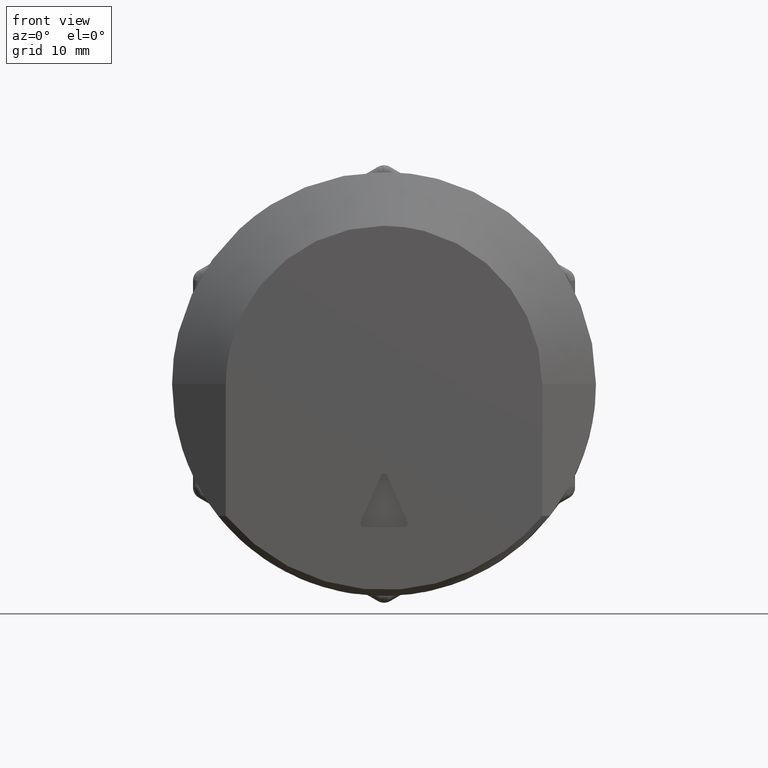
[diagram: clean part render]
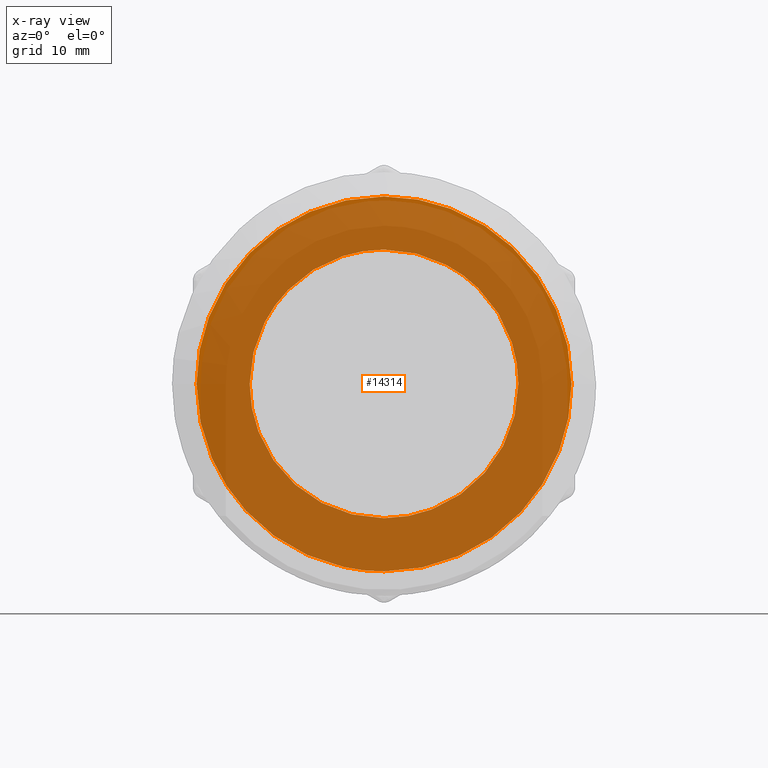
[diagram: x-ray — body ghosted, one internal face saturated and labeled with its STEP entity id]
A machine part, front view, then the same camera in x-ray: the body is ghosted and one INTERNAL B-rep face — a face not visible from any outside direction — is saturated and labeled: STEP entity #14314.
In plain terms, the highlighted face is a freeform B-spline surface patch.
Its self-contained STEP definition (entity closure, byte-faithful):
#10795=CARTESIAN_POINT('',(-0.700000168135558,8.024067912752862,7.885229576916546));
#10796=VERTEX_POINT('',#10795);
#10802=CARTESIAN_POINT('',(-0.700000000000000,11.249999999999920,0.000001345289322));
#10803=VERTEX_POINT('',#10802);
#10804=CARTESIAN_POINT('',(-0.700000000000000,11.249999999999920,0.000001345289322));
#10805=CARTESIAN_POINT('',(-0.700000019892967,11.250223918274729,0.932942530156515));
#10806=CARTESIAN_POINT('',(-0.700000052882342,11.056387429566140,2.480079896160794));
#10807=CARTESIAN_POINT('',(-0.700000098465802,10.322467038149201,4.617854406793517));
#10808=CARTESIAN_POINT('',(-0.700000135536841,9.357582318133222,6.356413888216860));
#10809=CARTESIAN_POINT('',(-0.700000158100705,8.486614304273321,7.414614618078452));
#10810=CARTESIAN_POINT('',(-0.700000168135558,8.024067912752862,7.885229576916546));
#10811=B_SPLINE_CURVE_WITH_KNOTS('',3,(#10804,#10805,#10806,#10807,#10808,#10809,#10810),.UNSPECIFIED.,.F.,.U.,(4,1,1,1,4),(0.000000014502499,2.798754403480887,4.641827990673709,6.757962193942015,8.737566822168997),.UNSPECIFIED.);
#10812=EDGE_CURVE('',#10803,#10796,#10811,.T.);
#10814=CARTESIAN_POINT('',(-0.700000000000000,0.0,-11.250000000000000));
#10815=VERTEX_POINT('',#10814);
#10816=CARTESIAN_POINT('',(-0.700000000000000,0.0,-11.250000000000000));
#10817=CARTESIAN_POINT('',(-0.700000000000002,0.805350332452206,-11.250148687925980));
#10818=CARTESIAN_POINT('',(-0.699999999999998,2.001786388396512,-11.120939669879970));
#10819=CARTESIAN_POINT('',(-0.700000000000002,3.646450623551425,-10.671202827015760));
#10820=CARTESIAN_POINT('',(-0.700000000000001,4.970808401185765,-10.132144233765031));
#10821=CARTESIAN_POINT('',(-0.699999999999997,6.448237948988195,-9.277182199961631));
#10822=CARTESIAN_POINT('',(-0.700000000000006,7.862500775978261,-8.123772869737781));
#10823=CARTESIAN_POINT('',(-0.700000000000006,9.179221442141618,-6.606794381707761));
#10824=CARTESIAN_POINT('',(-0.699999999999965,10.101339347068031,-5.057574055387842));
#10825=CARTESIAN_POINT('',(-0.700000000000021,10.683344014914820,-3.601989820076792));
#10826=CARTESIAN_POINT('',(-0.699999999999977,11.120938979317410,-2.001783894578319));
#10827=CARTESIAN_POINT('',(-0.700000000000025,11.250152058847590,-0.805348361012741));
#10828=CARTESIAN_POINT('',(-0.700000000000000,11.249999999999920,0.000001345289322));
#10829=B_SPLINE_CURVE_WITH_KNOTS('',3,(#10816,#10817,#10818,#10819,#10820,#10821,#10822,#10823,#10824,#10825,#10826,#10827,#10828),.UNSPECIFIED.,.F.,.U.,(4,1,1,1,1,1,1,1,1,1,4),(0.000000058043877,2.416008437686742,3.589516832231487,5.108170323667233,6.695856568172596,8.697695005740384,10.561457179632580,12.701376914078249,14.081972406103249,15.255481118235060,17.671487156062948),.UNSPECIFIED.);
#10830=EDGE_CURVE('',#10815,#10803,#10829,.T.);
#10832=CARTESIAN_POINT('',(-0.700000000000000,-11.249999999999920,-0.000001345289481));
#10833=VERTEX_POINT('',#10832);
#10834=CARTESIAN_POINT('',(-0.700000000000000,-11.249999999999920,-0.000001345289481));
#10835=CARTESIAN_POINT('',(-0.699999999999999,-11.250370293043231,-1.012466191176613));
#10836=CARTESIAN_POINT('',(-0.700000000000001,-11.012233002559871,-2.761004116394061));
#10837=CARTESIAN_POINT('',(-0.700000000000000,-10.072030078909179,-5.198644001116131));
#10838=CARTESIAN_POINT('',(-0.700000000000001,-8.815866282330758,-7.116561466688702));
#10839=CARTESIAN_POINT('',(-0.699999999999995,-7.426932694571976,-8.505316995735777));
#10840=CARTESIAN_POINT('',(-0.699999999999998,-6.149730568634316,-9.452501359083811));
#10841=CARTESIAN_POINT('',(-0.700000000000020,-4.928088727671801,-10.149536360376890));
#10842=CARTESIAN_POINT('',(-0.699999999999993,-3.646448182168770,-10.671201566915800));
#10843=CARTESIAN_POINT('',(-0.700000000000003,-2.001785846049404,-11.120951713831440));
#10844=CARTESIAN_POINT('',(-0.699999999999999,-0.805348374516554,-11.250135682149930));
#10845=CARTESIAN_POINT('',(-0.700000000000000,0.0,-11.250000000000000));
#10846=B_SPLINE_CURVE_WITH_KNOTS('',3,(#10834,#10835,#10836,#10837,#10838,#10839,#10840,#10841,#10842,#10843,#10844,#10845),.UNSPECIFIED.,.F.,.U.,(4,1,1,1,1,1,1,1,1,4),(0.000000058158381,3.037285637179972,5.246229299486322,7.800305966934422,9.871180048806842,11.113689337792231,12.563316469766351,14.081971197455740,15.255479808973400,17.671485639605919),.UNSPECIFIED.);
#10847=EDGE_CURVE('',#10833,#10815,#10846,.T.);
#10849=CARTESIAN_POINT('',(-0.699999831864431,-7.885228869829906,8.024067193216261));
#10850=VERTEX_POINT('',#10849);
#10851=CARTESIAN_POINT('',(-0.699999831864431,-7.885228869829906,8.024067193216261));
#10852=CARTESIAN_POINT('',(-0.699999843480319,-8.449523282520858,7.469712919899064));
#10853=CARTESIAN_POINT('',(-0.699999868463563,-9.430601763725365,6.277417320073107));
#10854=CARTESIAN_POINT('',(-0.699999910960998,-10.496743609413160,4.249278254022461));
#10855=CARTESIAN_POINT('',(-0.699999955150291,-11.115340605591840,2.140397284380665));
#10856=CARTESIAN_POINT('',(-0.699999985374907,-11.250073832200041,0.697963541093560));
#10857=CARTESIAN_POINT('',(-0.700000000000000,-11.249999999999920,-0.000001345289481));
#10858=B_SPLINE_CURVE_WITH_KNOTS('',3,(#10851,#10852,#10853,#10854,#10855,#10856,#10857),.UNSPECIFIED.,.F.,.U.,(4,1,1,1,4),(0.000000015234434,2.373072745139285,4.606547821486907,6.840032528284461,8.933919581524874),.UNSPECIFIED.);
#10859=EDGE_CURVE('',#10850,#10833,#10858,.T.);
#10970=CARTESIAN_POINT('',(-0.700000000000000,0.0,11.250000000000000));
#10971=VERTEX_POINT('',#10970);
#10972=CARTESIAN_POINT('',(-0.700000000000000,0.0,11.250000000000000));
#10973=CARTESIAN_POINT('',(-0.699999985929655,-0.659871724774858,11.250060346182110));
#10974=CARTESIAN_POINT('',(-0.699999961671064,-1.797551848049475,11.149596812273980));
#10975=CARTESIAN_POINT('',(-0.699999926723033,-3.436546479215304,10.749082266384621));
#10976=CARTESIAN_POINT('',(-0.699999897766435,-4.794553595908223,10.212638853975321));
#10977=CARTESIAN_POINT('',(-0.699999864621301,-6.348996615961720,9.349978501180987));
#10978=CARTESIAN_POINT('',(-0.699999843974534,-7.317288323422429,8.582373868535917));
#10979=CARTESIAN_POINT('',(-0.699999831864431,-7.885228869829906,8.024067193216261));
#10980=B_SPLINE_CURVE_WITH_KNOTS('',3,(#10972,#10973,#10974,#10975,#10976,#10977,#10978,#10979),.UNSPECIFIED.,.F.,.U.,(4,1,1,1,1,4),(0.000000014496855,1.979604858760677,3.413120047196962,5.051398990001042,6.348388739364918,8.737567775705646),.UNSPECIFIED.);
#10981=EDGE_CURVE('',#10971,#10850,#10980,.T.);
#10983=CARTESIAN_POINT('',(-0.700000168135558,8.024067912752862,7.885229576916546));
#10984=CARTESIAN_POINT('',(-0.700000155495312,7.420827270974567,8.499342625463372));
#10985=CARTESIAN_POINT('',(-0.700000128004467,6.108859882932483,9.558531947051991));
#10986=CARTESIAN_POINT('',(-0.700000086619350,4.133804538747438,10.527280979372531));
#10987=CARTESIAN_POINT('',(-0.700000043873986,2.093833414308187,11.111971192313320));
#10988=CARTESIAN_POINT('',(-0.700000016575277,0.791035129518344,11.250135924459510));
#10989=CARTESIAN_POINT('',(-0.700000000000000,0.0,11.250000000000000));
#10990=B_SPLINE_CURVE_WITH_KNOTS('',3,(#10983,#10984,#10985,#10986,#10987,#10988,#10989),.UNSPECIFIED.,.F.,.U.,(4,1,1,1,4),(0.000000015233171,2.582463509709259,5.025318163173779,6.560846157831058,8.933918636791450),.UNSPECIFIED.);
#10991=EDGE_CURVE('',#10796,#10971,#10990,.T.);
#12792=CARTESIAN_POINT('',(-0.700000000000000,0.0,15.699999999999999));
#12793=VERTEX_POINT('',#12792);
#12794=CARTESIAN_POINT('',(-0.700000141779964,11.251419959105370,10.949681983883030));
#12795=VERTEX_POINT('',#12794);
#12796=CARTESIAN_POINT('',(-0.700000000000000,0.0,15.699999999999999));
#12797=CARTESIAN_POINT('',(-0.700000014819332,1.176037148669529,15.700223839727080));
#12798=CARTESIAN_POINT('',(-0.700000035811579,2.841947103033864,15.511924831730450));
#12799=CARTESIAN_POINT('',(-0.700000064394869,5.110268487002743,14.880305804894141));
#12800=CARTESIAN_POINT('',(-0.700000088492662,7.022628291404618,14.107939536493070));
#12801=CARTESIAN_POINT('',(-0.700000115877779,9.195869736967632,12.823763259589560));
#12802=CARTESIAN_POINT('',(-0.700000133455133,10.590773103102389,11.628661327975980));
#12803=CARTESIAN_POINT('',(-0.700000141779964,11.251419959105370,10.949681983883030));
#12804=B_SPLINE_CURVE_WITH_KNOTS('',3,(#12796,#12797,#12798,#12799,#12800,#12801,#12802,#12803),.UNSPECIFIED.,.F.,.U.,(4,1,1,1,1,4),(0.000000015018081,3.528041552049496,4.998061214771616,7.056076885346476,9.702108174320223,12.544138902547740),.UNSPECIFIED.);
#12805=EDGE_CURVE('',#12793,#12795,#12804,.T.);
#12807=CARTESIAN_POINT('',(-0.700000000000000,-15.699999999999960,0.000001134658629));
#12808=VERTEX_POINT('',#12807);
#12809=CARTESIAN_POINT('',(-0.700000000000000,-15.699999999999960,0.000001134658629));
#12810=CARTESIAN_POINT('',(-0.700000000000002,-15.700163641622639,1.091800276810471));
#12811=CARTESIAN_POINT('',(-0.699999999999996,-15.478040862473330,3.211073595217394));
#12812=CARTESIAN_POINT('',(-0.700000000000008,-14.532892620209671,6.194823472476147));
#12813=CARTESIAN_POINT('',(-0.699999999999988,-13.233574887810329,8.572544886494528));
#12814=CARTESIAN_POINT('',(-0.700000000000013,-11.715166122728110,10.530483421007419));
#12815=CARTESIAN_POINT('',(-0.700000000000003,-10.258632727927390,11.942987973192880));
#12816=CARTESIAN_POINT('',(-0.699999999999979,-8.660990030172338,13.135460540220370));
#12817=CARTESIAN_POINT('',(-0.700000000000042,-6.854295834577981,14.188527204580600));
#12818=CARTESIAN_POINT('',(-0.699999999999988,-4.939047269237870,14.954414371486020));
#12819=CARTESIAN_POINT('',(-0.699999999999997,-2.568851252566607,15.548127982330451));
#12820=CARTESIAN_POINT('',(-0.700000000000004,-1.027567450364385,15.700119640450280));
#12821=CARTESIAN_POINT('',(-0.700000000000000,0.0,15.699999999999999));
#12822=B_SPLINE_CURVE_WITH_KNOTS('',3,(#12809,#12810,#12811,#12812,#12813,#12814,#12815,#12816,#12817,#12818,#12819,#12820,#12821),.UNSPECIFIED.,.F.,.U.,(4,1,1,1,1,1,1,1,1,1,4),(0.000000051548675,3.275360665498130,6.358054983371272,9.344431126321004,11.367456481318390,13.775754791570600,15.413458993376850,17.340142049673940,20.037511439033889,21.578866138650941,24.661540377906910),.UNSPECIFIED.);
#12823=EDGE_CURVE('',#12808,#12793,#12822,.T.);
#12825=CARTESIAN_POINT('',(-0.700000000000000,0.0,-15.699999999999999));
#12826=VERTEX_POINT('',#12825);
#12827=CARTESIAN_POINT('',(-0.700000000000000,0.0,-15.699999999999999));
#12828=CARTESIAN_POINT('',(-0.700000000000001,-1.220252880982642,-15.700262836275879));
#12829=CARTESIAN_POINT('',(-0.699999999999999,-3.467903147456941,-15.436583250221069));
#12830=CARTESIAN_POINT('',(-0.700000000000001,-6.549610556556232,-14.376493953153100));
#12831=CARTESIAN_POINT('',(-0.699999999999999,-8.866811056129921,-13.035366495275790));
#12832=CARTESIAN_POINT('',(-0.700000000000002,-10.716330275130190,-11.536316082164920));
#12833=CARTESIAN_POINT('',(-0.699999999999997,-11.999603632167650,-10.180140136288060));
#12834=CARTESIAN_POINT('',(-0.700000000000006,-13.191745162228390,-8.582995402176000));
#12835=CARTESIAN_POINT('',(-0.699999999999983,-14.154292763181941,-6.907953071949891));
#12836=CARTESIAN_POINT('',(-0.700000000000009,-14.900731558244351,-5.057804021883642));
#12837=CARTESIAN_POINT('',(-0.699999999999983,-15.519887366685341,-2.793606973612736));
#12838=CARTESIAN_POINT('',(-0.700000000000018,-15.700212589255040,-1.123912677162248));
#12839=CARTESIAN_POINT('',(-0.700000000000000,-15.699999999999960,0.000001134658629));
#12840=B_SPLINE_CURVE_WITH_KNOTS('',3,(#12827,#12828,#12829,#12830,#12831,#12832,#12833,#12834,#12835,#12836,#12837,#12838,#12839),.UNSPECIFIED.,.F.,.U.,(4,1,1,1,1,1,1,1,1,1,4),(0.000000051429474,3.660682264536519,6.743391650246561,9.729757017880290,11.656464703347490,13.872113036938551,15.317112611775769,17.629149417038239,19.652168583671980,21.289860894062340,24.661541656933689),.UNSPECIFIED.);
#12841=EDGE_CURVE('',#12826,#12808,#12840,.T.);
#12843=CARTESIAN_POINT('',(-0.699999858796948,11.575254500780030,-10.606766545423969));
#12844=VERTEX_POINT('',#12843);
#12845=CARTESIAN_POINT('',(-0.699999858796948,11.575254500780030,-10.606766545423969));
#12846=CARTESIAN_POINT('',(-0.699999868571861,10.773946821102760,-11.481618616392939));
#12847=CARTESIAN_POINT('',(-0.699999883648270,9.538043452551859,-12.555704541069289));
#12848=CARTESIAN_POINT('',(-0.699999907137758,7.612471092129302,-13.763479633414230));
#12849=CARTESIAN_POINT('',(-0.699999930933371,5.661801648464724,-14.721962628185709));
#12850=CARTESIAN_POINT('',(-0.699999962787060,3.050567759762782,-15.505260832126080));
#12851=CARTESIAN_POINT('',(-0.699999988009084,0.982965294835803,-15.700086433896329));
#12852=CARTESIAN_POINT('',(-0.700000000000000,0.0,-15.699999999999999));
#12853=B_SPLINE_CURVE_WITH_KNOTS('',3,(#12845,#12846,#12847,#12848,#12849,#12850,#12851,#12852),.UNSPECIFIED.,.F.,.U.,(4,1,1,1,1,4),(0.000000015803645,3.559012472086298,4.880940880957303,6.812964734954188,10.066920294807909,13.015815822671120),.UNSPECIFIED.);
#12854=EDGE_CURVE('',#12844,#12826,#12853,.T.);
#12963=CARTESIAN_POINT('',(-0.700000000000000,15.699999999999960,-0.000001134658817));
#12964=VERTEX_POINT('',#12963);
#12965=CARTESIAN_POINT('',(-0.700000141779964,11.251419959105370,10.949681983883030));
#12966=CARTESIAN_POINT('',(-0.700000132118181,11.977800868849391,10.203501318652020));
#12967=CARTESIAN_POINT('',(-0.700000111876810,13.221848857157511,8.640257719584829));
#12968=CARTESIAN_POINT('',(-0.700000077349476,14.618334912804860,5.973707895401581));
#12969=CARTESIAN_POINT('',(-0.700000040041529,15.495205441964711,3.092410641438696));
#12970=CARTESIAN_POINT('',(-0.700000013483660,15.700113050531650,1.041343699284814));
#12971=CARTESIAN_POINT('',(-0.700000000000000,15.699999999999960,-0.000001134658817));
#12972=B_SPLINE_CURVE_WITH_KNOTS('',3,(#12965,#12966,#12967,#12968,#12969,#12970,#12971),.UNSPECIFIED.,.F.,.U.,(4,1,1,1,4),(0.000000013491169,3.124018280536612,5.964051242005880,8.993384683169319,12.117402950217249),.UNSPECIFIED.);
#12973=EDGE_CURVE('',#12795,#12964,#12972,.T.);
#13000=CARTESIAN_POINT('',(-0.700000000000000,15.699999999999960,-0.000001134658817));
#13001=CARTESIAN_POINT('',(-0.699999991521600,15.700012150813970,-0.636874191406942));
#13002=CARTESIAN_POINT('',(-0.699999972949792,15.615012903622620,-2.031934469891149));
#13003=CARTESIAN_POINT('',(-0.699999942763049,15.169273718601390,-4.299475960386963));
#13004=CARTESIAN_POINT('',(-0.699999911966533,14.315642657307921,-6.612820570299818));
#13005=CARTESIAN_POINT('',(-0.699999883085422,13.085605696724270,-8.782287858249466));
#13006=CARTESIAN_POINT('',(-0.699999866535824,12.107999760556391,-10.025443765658110));
#13007=CARTESIAN_POINT('',(-0.699999858796948,11.575254500780030,-10.606766545423969));
#13008=B_SPLINE_CURVE_WITH_KNOTS('',3,(#13000,#13001,#13002,#13003,#13004,#13005,#13006,#13007),.UNSPECIFIED.,.F.,.U.,(4,1,1,1,1,4),(0.000000012572189,1.910623490823001,4.185190159236648,6.914647150076575,9.280187418534446,11.645724751120589),.UNSPECIFIED.);
#13009=EDGE_CURVE('',#12964,#12844,#13008,.T.);
#14293=CARTESIAN_POINT('',(-0.700000000000000,-17.268429939140660,-17.268429939140709));
#14294=CARTESIAN_POINT('',(-0.700000000000000,-17.268429939140660,17.268430781354340));
#14295=CARTESIAN_POINT('',(-0.700000000000000,17.268430781354290,-17.268429939140709));
#14296=CARTESIAN_POINT('',(-0.700000000000000,17.268430781354290,17.268430781354340));
#14297=B_SPLINE_SURFACE_WITH_KNOTS('',1,1,((#14293,#14295),(#14294,#14296)),.UNSPECIFIED.,.F.,.F.,.U.,(2,2),(2,2),(0.0,34.536860720495042),(0.0,34.536860720494957),.UNSPECIFIED.);
#14298=ORIENTED_EDGE('',*,*,#12805,.T.);
#14299=ORIENTED_EDGE('',*,*,#12973,.T.);
#14300=ORIENTED_EDGE('',*,*,#13009,.T.);
#14301=ORIENTED_EDGE('',*,*,#12854,.T.);
#14302=ORIENTED_EDGE('',*,*,#12841,.T.);
#14303=ORIENTED_EDGE('',*,*,#12823,.T.);
#14304=EDGE_LOOP('',(#14298,#14299,#14300,#14301,#14302,#14303));
#14305=FACE_OUTER_BOUND('',#14304,.T.);
#14306=ORIENTED_EDGE('',*,*,#10847,.T.);
#14307=ORIENTED_EDGE('',*,*,#10830,.T.);
#14308=ORIENTED_EDGE('',*,*,#10812,.T.);
#14309=ORIENTED_EDGE('',*,*,#10991,.T.);
#14310=ORIENTED_EDGE('',*,*,#10981,.T.);
#14311=ORIENTED_EDGE('',*,*,#10859,.T.);
#14312=EDGE_LOOP('',(#14306,#14307,#14308,#14309,#14310,#14311));
#14313=FACE_BOUND('',#14312,.T.);
#14314=ADVANCED_FACE('',(#14305,#14313),#14297,.T.);